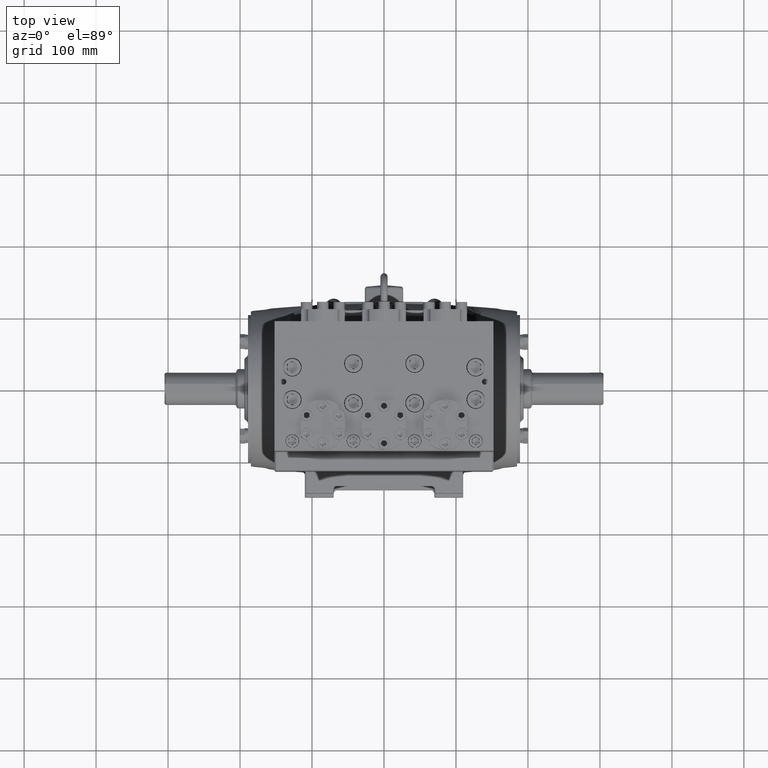
[diagram: clean part render]
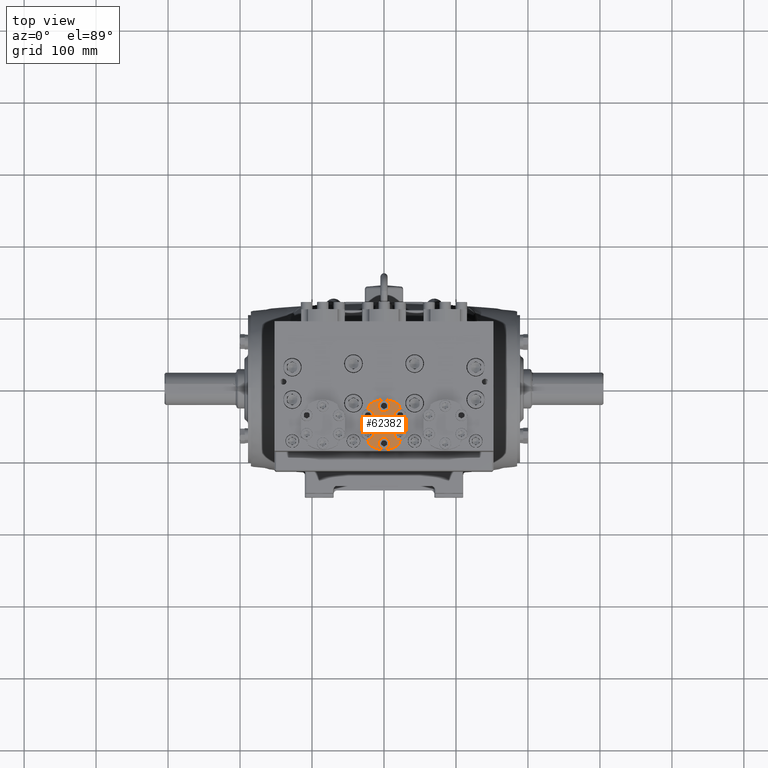
[diagram: same view with one face highlighted and labeled with its STEP entity id]
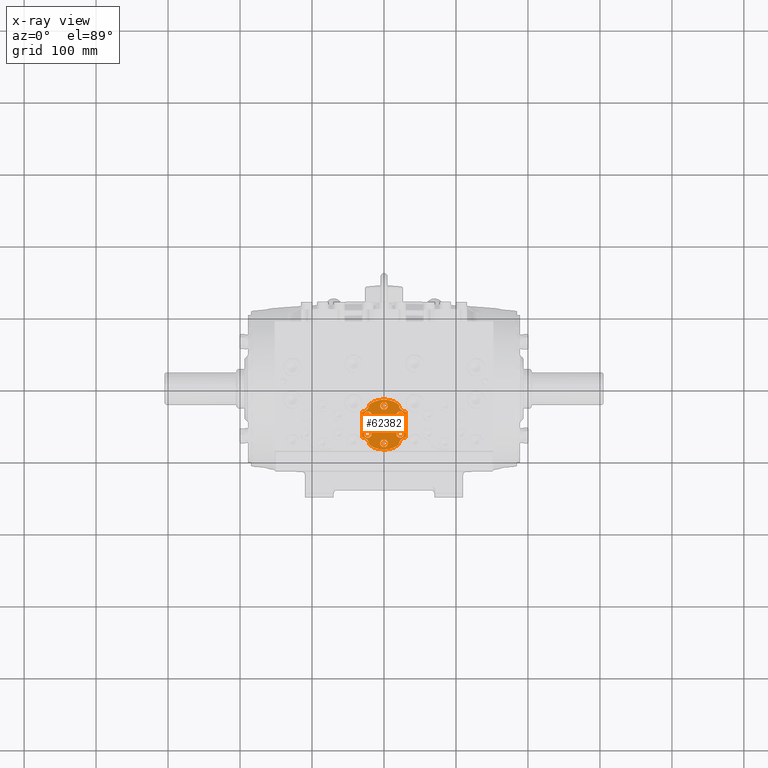
[diagram: x-ray of the same camera — body ghosted, the highlighted face saturated]
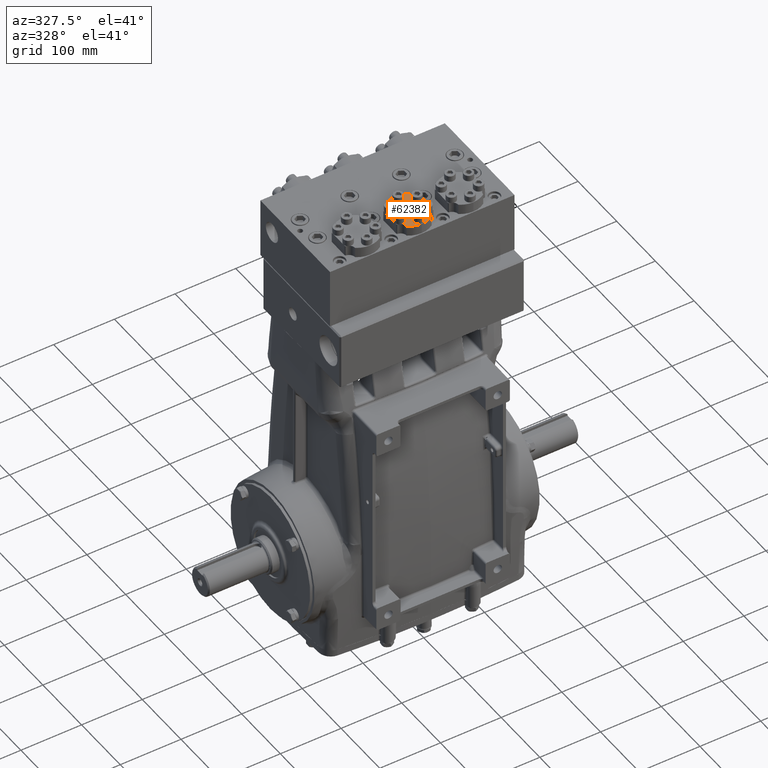
[diagram: same view with one face highlighted and labeled with its STEP entity id]
A machine part, top view. The second image highlights one B-rep face of the part: STEP entity #62382.
The next image is the same camera in x-ray: the body ghosted, the highlighted face saturated — about 0% of this face is hidden behind the body in this view.
A second angle (auxiliary view) of the same face is appended — the face is thin or edge-on in the first view.
In plain terms, the highlighted planar face has unit normal (-0, -0, -1).
Its self-contained STEP definition (entity closure, byte-faithful):
#871 = ORIENTED_EDGE ( 'NONE', *, *, #19215, .F. ) ;
#2094 = DIRECTION ( 'NONE',  ( -1.321694076934709021E-15, -1.000000000000000000, 0.000000000000000000 ) ) ;
#2127 = CARTESIAN_POINT ( 'NONE',  ( 1.200787401574801017, -3.017822932416573511, 23.11023622047244075 ) ) ;
#2505 = CARTESIAN_POINT ( 'NONE',  ( 0.8864826967872170282, -1.850393700787399398, 23.11023622047244075 ) ) ;
#2901 = CARTESIAN_POINT ( 'NONE',  ( -0.8864826967872231345, -1.850393700787405393, 23.11023622047244075 ) ) ;
#3711 = VERTEX_POINT ( 'NONE', #49008 ) ;
#4434 = VERTEX_POINT ( 'NONE', #61658 ) ;
#4940 = PLANE ( 'NONE',  #7246 ) ;
#5208 = CARTESIAN_POINT ( 'NONE',  ( 1.169512579524098594, -3.072110313052140107, 23.11023622047244075 ) ) ;
#5343 = DIRECTION ( 'NONE',  ( 9.960234374190967267E-16, 1.000000000000000000, -5.483502206371327654E-16 ) ) ;
#5747 = FACE_BOUND ( 'NONE', #59262, .T. ) ;
#6237 = ORIENTED_EDGE ( 'NONE', *, *, #61393, .F. ) ;
#6467 = CARTESIAN_POINT ( 'NONE',  ( 0.8070934578720179164, -1.257521163967174838, 23.11023622047244075 ) ) ;
#7201 = DIRECTION ( 'NONE',  ( -9.960234374190959378E-16, -1.000000000000000000, 0.000000000000000000 ) ) ;
#7246 = AXIS2_PLACEMENT_3D ( 'NONE', #23993, #29656, #5343 ) ;
#7509 = ORIENTED_EDGE ( 'NONE', *, *, #40975, .F. ) ;
#8096 = CARTESIAN_POINT ( 'NONE',  ( -7.417021470242838507E-16, -1.545275590551183020, 23.11023622047244075 ) ) ;
#8156 = VERTEX_POINT ( 'NONE', #63225 ) ;
#8890 = EDGE_CURVE ( 'NONE', #33259, #64832, #17787, .T. ) ;
#8916 = CIRCLE ( 'NONE', #30950, 1.368110236220472675 ) ;
#9375 = DIRECTION ( 'NONE',  ( 2.245699772446549611E-17, 5.483502206371328640E-16, 1.000000000000000000 ) ) ;
#9512 = ORIENTED_EDGE ( 'NONE', *, *, #69629, .F. ) ;
#10181 = CARTESIAN_POINT ( 'NONE',  ( -0.8864826967872229124, -1.643700787401578545, 23.11023622047244075 ) ) ;
#10457 = VECTOR ( 'NONE', #69738, 39.37007874015748143 ) ;
#10501 = ORIENTED_EDGE ( 'NONE', *, *, #69372, .F. ) ;
#10594 = EDGE_CURVE ( 'NONE', #61530, #48633, #56741, .T. ) ;
#10714 = DIRECTION ( 'NONE',  ( -1.321694076934709021E-15, -1.000000000000000000, 0.000000000000000000 ) ) ;
#11179 = ORIENTED_EDGE ( 'NONE', *, *, #71028, .F. ) ;
#12231 = CARTESIAN_POINT ( 'NONE',  ( 0.8864826967872170282, -1.850393700787399398, 23.11023622047244075 ) ) ;
#12756 = CIRCLE ( 'NONE', #48976, 0.3937007874015746034 ) ;
#12861 = EDGE_CURVE ( 'NONE', #68354, #31654, #8916, .T. ) ;
#13527 = AXIS2_PLACEMENT_3D ( 'NONE', #35276, #9375, #58804 ) ;
#13862 = CARTESIAN_POINT ( 'NONE',  ( -1.200787401574805457, -3.017822932416572179, 23.11023622047244075 ) ) ;
#14514 = VERTEX_POINT ( 'NONE', #5208 ) ;
#15436 = CARTESIAN_POINT ( 'NONE',  ( -1.555382711057601310E-15, -2.362204724409450840, 23.11023622047244075 ) ) ;
#15943 = EDGE_CURVE ( 'NONE', #19667, #18188, #48064, .T. ) ;
#16300 = EDGE_CURVE ( 'NONE', #22974, #38674, #70087, .T. ) ;
#16450 = VERTEX_POINT ( 'NONE', #31763 ) ;
#17255 = CIRCLE ( 'NONE', #21124, 0.2066929133858269596 ) ;
#17512 = CARTESIAN_POINT ( 'NONE',  ( -1.200787401574803903, -1.706586516402327947, 23.11023622047244075 ) ) ;
#17543 = DIRECTION ( 'NONE',  ( -2.245699772446549611E-17, -5.483502206371328640E-16, -1.000000000000000000 ) ) ;
#17787 = CIRCLE ( 'NONE', #44937, 0.2066929133858269596 ) ;
#17924 = DIRECTION ( 'NONE',  ( 2.245699772446549611E-17, 5.483502206371328640E-16, 1.000000000000000000 ) ) ;
#18188 = VERTEX_POINT ( 'NONE', #39114 ) ;
#18727 = AXIS2_PLACEMENT_3D ( 'NONE', #24363, #49083, #73770 ) ;
#19215 = EDGE_CURVE ( 'NONE', #42762, #27442, #46956, .T. ) ;
#19667 = VERTEX_POINT ( 'NONE', #72004 ) ;
#19994 = AXIS2_PLACEMENT_3D ( 'NONE', #65816, #53261, #28131 ) ;
#20025 = VERTEX_POINT ( 'NONE', #22513 ) ;
#21124 = AXIS2_PLACEMENT_3D ( 'NONE', #44817, #27385, #39125 ) ;
#21978 = DIRECTION ( 'NONE',  ( -1.626579328312230879E-16, -1.000000000000000000, 5.483502206371325682E-16 ) ) ;
#22052 = ORIENTED_EDGE ( 'NONE', *, *, #68607, .F. ) ;
#22513 = CARTESIAN_POINT ( 'NONE',  ( 1.200787401574801017, -3.017822932416573511, 23.11023622047244075 ) ) ;
#22581 = ORIENTED_EDGE ( 'NONE', *, *, #8890, .F. ) ;
#22974 = VERTEX_POINT ( 'NONE', #48495 ) ;
#23089 = EDGE_CURVE ( 'NONE', #20025, #14514, #33859, .T. ) ;
#23187 = FACE_BOUND ( 'NONE', #24132, .T. ) ;
#23460 = DIRECTION ( 'NONE',  ( 2.245699772446549611E-17, 5.483502206371328640E-16, 1.000000000000000000 ) ) ;
#23993 = CARTESIAN_POINT ( 'NONE',  ( -1.555382711057601310E-15, -2.362204724409450840, 23.11023622047244075 ) ) ;
#24132 = EDGE_LOOP ( 'NONE', ( #6237, #9512 ) ) ;
#24363 = CARTESIAN_POINT ( 'NONE',  ( -1.200787401574803681, -1.259842519685039353, 23.11023622047244075 ) ) ;
#24532 = DIRECTION ( 'NONE',  ( -1.321694076934709021E-15, -1.000000000000000000, 0.000000000000000000 ) ) ;
#25437 = CARTESIAN_POINT ( 'NONE',  ( -2.574934261171637748E-15, -3.385826771653545730, 23.11023622047244075 ) ) ;
#25695 = DIRECTION ( 'NONE',  ( -2.245699772446549611E-17, -5.483502206371328640E-16, -1.000000000000000000 ) ) ;
#26012 = DIRECTION ( 'NONE',  ( 2.245699772446549611E-17, 5.483502206371328640E-16, 1.000000000000000000 ) ) ;
#26055 = AXIS2_PLACEMENT_3D ( 'NONE', #30647, #67135, #72393 ) ;
#26441 = DIRECTION ( 'NONE',  ( -1.321694076934709021E-15, -1.000000000000000000, 0.000000000000000000 ) ) ;
#26696 = CARTESIAN_POINT ( 'NONE',  ( -1.169512579524102591, -3.072110313052138775, 23.11023622047244075 ) ) ;
#27251 = EDGE_LOOP ( 'NONE', ( #51218, #10501 ) ) ;
#27385 = DIRECTION ( 'NONE',  ( 2.245699772446549611E-17, 5.483502206371328640E-16, 1.000000000000000000 ) ) ;
#27442 = VERTEX_POINT ( 'NONE', #8096 ) ;
#27672 = DIRECTION ( 'NONE',  ( -9.960234374190965294E-16, -1.000000000000000000, 0.000000000000000000 ) ) ;
#27690 = EDGE_CURVE ( 'NONE', #31654, #19667, #44492, .T. ) ;
#27703 = AXIS2_PLACEMENT_3D ( 'NONE', #38511, #63653, #76978 ) ;
#28131 = DIRECTION ( 'NONE',  ( -9.960234374190959378E-16, -1.000000000000000000, 0.000000000000000000 ) ) ;
#28315 = CARTESIAN_POINT ( 'NONE',  ( -1.169512579524101481, -1.652299135766762017, 23.11023622047244075 ) ) ;
#29475 = CARTESIAN_POINT ( 'NONE',  ( -0.8864826967872234675, -2.057086614173232242, 23.11023622047244075 ) ) ;
#29656 = DIRECTION ( 'NONE',  ( -2.245699772446549611E-17, -5.483502206371327654E-16, -1.000000000000000000 ) ) ;
#29777 = DIRECTION ( 'NONE',  ( -2.245699772446549611E-17, -5.483502206371328640E-16, -1.000000000000000000 ) ) ;
#30329 = DIRECTION ( 'NONE',  ( 1.040834085586085637E-15, 1.000000000000000000, 0.000000000000000000 ) ) ;
#30392 = EDGE_CURVE ( 'NONE', #38674, #45259, #68032, .T. ) ;
#30435 = DIRECTION ( 'NONE',  ( 2.245699772446549611E-17, 5.483502206371328640E-16, 1.000000000000000000 ) ) ;
#30647 = CARTESIAN_POINT ( 'NONE',  ( -1.555382711057601310E-15, -2.362204724409450840, 23.11023622047244075 ) ) ;
#30950 = AXIS2_PLACEMENT_3D ( 'NONE', #56881, #25695, #50409 ) ;
#31263 = CARTESIAN_POINT ( 'NONE',  ( -1.555382711057601310E-15, -2.362204724409450840, 23.11023622047244075 ) ) ;
#31654 = VERTEX_POINT ( 'NONE', #6467 ) ;
#31763 = CARTESIAN_POINT ( 'NONE',  ( 0.8864826967872204699, -2.667322834645669438, 23.11023622047244075 ) ) ;
#33259 = VERTEX_POINT ( 'NONE', #65033 ) ;
#33423 = EDGE_CURVE ( 'NONE', #8156, #4434, #51305, .T. ) ;
#33501 = ORIENTED_EDGE ( 'NONE', *, *, #50639, .F. ) ;
#33573 = EDGE_LOOP ( 'NONE', ( #59476, #52513 ) ) ;
#33859 = CIRCLE ( 'NONE', #26055, 1.368110236220472675 ) ;
#33982 = CARTESIAN_POINT ( 'NONE',  ( -0.8070934578720195818, -1.257521163967173727, 23.11023622047244075 ) ) ;
#34078 = DIRECTION ( 'NONE',  ( 2.245699772446549611E-17, 5.483502206371328640E-16, 1.000000000000000000 ) ) ;
#34138 = CARTESIAN_POINT ( 'NONE',  ( -1.555382711057601310E-15, -2.362204724409450840, 23.11023622047244075 ) ) ;
#34428 = AXIS2_PLACEMENT_3D ( 'NONE', #31263, #17543, #49911 ) ;
#34944 = CARTESIAN_POINT ( 'NONE',  ( -2.925567708339946696E-15, -3.730314960629923515, 23.11023622047244075 ) ) ;
#34961 = DIRECTION ( 'NONE',  ( -2.245699772446549611E-17, -5.483502206371328640E-16, -1.000000000000000000 ) ) ;
#35276 = CARTESIAN_POINT ( 'NONE',  ( -2.574934261171637748E-15, -3.385826771653545730, 23.11023622047244075 ) ) ;
#36105 = CARTESIAN_POINT ( 'NONE',  ( -1.200787401574805902, -3.464566929133860995, 23.11023622047244075 ) ) ;
#36125 = FACE_BOUND ( 'NONE', #38366, .T. ) ;
#36293 = CARTESIAN_POINT ( 'NONE',  ( 0.8864826967872168062, -2.057086614173226469, 23.11023622047244075 ) ) ;
#36390 = CARTESIAN_POINT ( 'NONE',  ( -2.343750693612479402E-15, -3.179133858267718882, 23.11023622047244075 ) ) ;
#37688 = AXIS2_PLACEMENT_3D ( 'NONE', #15436, #78875, #41628 ) ;
#37827 = DIRECTION ( 'NONE',  ( -1.321694076934709021E-15, -1.000000000000000000, 0.000000000000000000 ) ) ;
#38366 = EDGE_LOOP ( 'NONE', ( #75113, #871 ) ) ;
#38511 = CARTESIAN_POINT ( 'NONE',  ( 1.200787401574800795, -3.464566929133862327, 23.11023622047244075 ) ) ;
#38674 = VERTEX_POINT ( 'NONE', #34944 ) ;
#39114 = CARTESIAN_POINT ( 'NONE',  ( 1.200787401574801461, -1.706586516402329945, 23.11023622047244075 ) ) ;
#39125 = DIRECTION ( 'NONE',  ( -1.321694076934709021E-15, -1.000000000000000000, 0.000000000000000000 ) ) ;
#39414 = CIRCLE ( 'NONE', #57574, 0.2066929133858269596 ) ;
#39754 = CARTESIAN_POINT ( 'NONE',  ( -1.200787401574805457, -3.017822932416572179, 23.11023622047244075 ) ) ;
#40808 = AXIS2_PLACEMENT_3D ( 'NONE', #57225, #56054, #26441 ) ;
#40975 = EDGE_CURVE ( 'NONE', #18188, #20025, #63719, .T. ) ;
#41628 = DIRECTION ( 'NONE',  ( 9.960234374190967267E-16, 1.000000000000000000, 0.000000000000000000 ) ) ;
#41900 = AXIS2_PLACEMENT_3D ( 'NONE', #72882, #23460, #30329 ) ;
#42173 = ORIENTED_EDGE ( 'NONE', *, *, #12861, .F. ) ;
#42762 = VERTEX_POINT ( 'NONE', #52946 ) ;
#43554 = AXIS2_PLACEMENT_3D ( 'NONE', #59745, #54472, #10714 ) ;
#43675 = DIRECTION ( 'NONE',  ( 2.245699772446549611E-17, 5.483502206371328640E-16, 1.000000000000000000 ) ) ;
#44492 = CIRCLE ( 'NONE', #41900, 0.3937007874015743258 ) ;
#44817 = CARTESIAN_POINT ( 'NONE',  ( -0.8864826967872231345, -1.850393700787405393, 23.11023622047244075 ) ) ;
#44937 = AXIS2_PLACEMENT_3D ( 'NONE', #12231, #17924, #67336 ) ;
#45259 = VERTEX_POINT ( 'NONE', #55816 ) ;
#45960 = VERTEX_POINT ( 'NONE', #26696 ) ;
#46956 = CIRCLE ( 'NONE', #57290, 0.2066929133858269596 ) ;
#47146 = DIRECTION ( 'NONE',  ( 9.960234374190967267E-16, 1.000000000000000000, 0.000000000000000000 ) ) ;
#47942 = ORIENTED_EDGE ( 'NONE', *, *, #60659, .F. ) ;
#48064 = CIRCLE ( 'NONE', #37688, 1.368110236220471787 ) ;
#48421 = CIRCLE ( 'NONE', #27703, 0.3937007874015746034 ) ;
#48495 = CARTESIAN_POINT ( 'NONE',  ( 0.8070934578720168062, -3.466888284851728397, 23.11023622047244075 ) ) ;
#48633 = VERTEX_POINT ( 'NONE', #28315 ) ;
#48976 = AXIS2_PLACEMENT_3D ( 'NONE', #36105, #30435, #79830 ) ;
#49008 = CARTESIAN_POINT ( 'NONE',  ( -2.780805247252356432E-15, -3.592519685039373023, 23.11023622047244075 ) ) ;
#49083 = DIRECTION ( 'NONE',  ( 2.245699772446549611E-17, 5.483502206371328640E-16, 1.000000000000000000 ) ) ;
#49232 = AXIS2_PLACEMENT_3D ( 'NONE', #56492, #50415, #24532 ) ;
#49429 = VERTEX_POINT ( 'NONE', #10181 ) ;
#49440 = CARTESIAN_POINT ( 'NONE',  ( 0.8864826967872199148, -3.080708661417323579, 23.11023622047244075 ) ) ;
#49911 = DIRECTION ( 'NONE',  ( 9.960234374190967267E-16, 1.000000000000000000, 0.000000000000000000 ) ) ;
#50024 = ORIENTED_EDGE ( 'NONE', *, *, #15943, .F. ) ;
#50331 = ORIENTED_EDGE ( 'NONE', *, *, #30392, .F. ) ;
#50409 = DIRECTION ( 'NONE',  ( -9.960234374190965294E-16, -1.000000000000000000, 0.000000000000000000 ) ) ;
#50415 = DIRECTION ( 'NONE',  ( 2.245699772446549611E-17, 5.483502206371328640E-16, 1.000000000000000000 ) ) ;
#50535 = EDGE_CURVE ( 'NONE', #27442, #42762, #54938, .T. ) ;
#50639 = EDGE_CURVE ( 'NONE', #48633, #68354, #55000, .T. ) ;
#51126 = LINE ( 'NONE', #39754, #10457 ) ;
#51218 = ORIENTED_EDGE ( 'NONE', *, *, #68065, .F. ) ;
#51305 = CIRCLE ( 'NONE', #43554, 0.2066929133858269596 ) ;
#51611 = DIRECTION ( 'NONE',  ( 2.245699772446549611E-17, 5.483502206371328640E-16, 1.000000000000000000 ) ) ;
#51758 = EDGE_LOOP ( 'NONE', ( #68396, #22052, #53775, #7509, #50024, #51864, #42173, #33501, #53541, #78519, #57375, #72465, #50331 ) ) ;
#51864 = ORIENTED_EDGE ( 'NONE', *, *, #27690, .F. ) ;
#52513 = ORIENTED_EDGE ( 'NONE', *, *, #53397, .F. ) ;
#52822 = CARTESIAN_POINT ( 'NONE',  ( -1.555382711057601310E-15, -2.362204724409450840, 23.11023622047244075 ) ) ;
#52946 = CARTESIAN_POINT ( 'NONE',  ( -3.046475933844067222E-16, -1.131889763779529323, 23.11023622047244075 ) ) ;
#53163 = AXIS2_PLACEMENT_3D ( 'NONE', #2505, #26012, #75805 ) ;
#53261 = DIRECTION ( 'NONE',  ( 2.245699772446549611E-17, 5.483502206371328640E-16, 1.000000000000000000 ) ) ;
#53397 = EDGE_CURVE ( 'NONE', #4434, #8156, #77633, .T. ) ;
#53541 = ORIENTED_EDGE ( 'NONE', *, *, #10594, .F. ) ;
#53775 = ORIENTED_EDGE ( 'NONE', *, *, #23089, .F. ) ;
#53999 = EDGE_CURVE ( 'NONE', #64832, #33259, #67440, .T. ) ;
#54258 = EDGE_CURVE ( 'NONE', #72282, #61530, #51126, .T. ) ;
#54472 = DIRECTION ( 'NONE',  ( 2.245699772446549611E-17, 5.483502206371328640E-16, 1.000000000000000000 ) ) ;
#54790 = FACE_OUTER_BOUND ( 'NONE', #51758, .T. ) ;
#54938 = CIRCLE ( 'NONE', #19994, 0.2066929133858269596 ) ;
#55000 = CIRCLE ( 'NONE', #18727, 0.3937007874015743258 ) ;
#55062 = CIRCLE ( 'NONE', #40808, 0.2066929133858269596 ) ;
#55712 = DIRECTION ( 'NONE',  ( 9.960234374190967267E-16, 1.000000000000000000, 0.000000000000000000 ) ) ;
#55816 = CARTESIAN_POINT ( 'NONE',  ( -0.8070934578720220243, -3.466888284851727065, 23.11023622047244075 ) ) ;
#56054 = DIRECTION ( 'NONE',  ( 2.245699772446549611E-17, 5.483502206371328640E-16, 1.000000000000000000 ) ) ;
#56171 = CIRCLE ( 'NONE', #72935, 0.2066929133858269596 ) ;
#56492 = CARTESIAN_POINT ( 'NONE',  ( -0.8864826967872200258, -2.874015748031502504, 23.11023622047244075 ) ) ;
#56741 = CIRCLE ( 'NONE', #73576, 1.368110236220472675 ) ;
#56881 = CARTESIAN_POINT ( 'NONE',  ( -1.555382711057601310E-15, -2.362204724409450840, 23.11023622047244075 ) ) ;
#57225 = CARTESIAN_POINT ( 'NONE',  ( 0.8864826967872201369, -2.874015748031496731, 23.11023622047244075 ) ) ;
#57290 = AXIS2_PLACEMENT_3D ( 'NONE', #79845, #73793, #61644 ) ;
#57307 = EDGE_CURVE ( 'NONE', #45960, #72282, #61303, .T. ) ;
#57375 = ORIENTED_EDGE ( 'NONE', *, *, #57307, .F. ) ;
#57574 = AXIS2_PLACEMENT_3D ( 'NONE', #25437, #43675, #7201 ) ;
#57654 = DIRECTION ( 'NONE',  ( -2.245699772446549611E-17, -5.483502206371328640E-16, -1.000000000000000000 ) ) ;
#58645 = CIRCLE ( 'NONE', #75433, 0.2066929133858269596 ) ;
#58804 = DIRECTION ( 'NONE',  ( -9.960234374190959378E-16, -1.000000000000000000, 0.000000000000000000 ) ) ;
#59262 = EDGE_LOOP ( 'NONE', ( #47942, #11179 ) ) ;
#59476 = ORIENTED_EDGE ( 'NONE', *, *, #33423, .F. ) ;
#59512 = VECTOR ( 'NONE', #21978, 39.37007874015748143 ) ;
#59745 = CARTESIAN_POINT ( 'NONE',  ( -0.8864826967872200258, -2.874015748031502504, 23.11023622047244075 ) ) ;
#60659 = EDGE_CURVE ( 'NONE', #3711, #64512, #39414, .T. ) ;
#61260 = FACE_BOUND ( 'NONE', #33573, .T. ) ;
#61303 = CIRCLE ( 'NONE', #65179, 1.368110236220472897 ) ;
#61393 = EDGE_CURVE ( 'NONE', #63192, #16450, #55062, .T. ) ;
#61530 = VERTEX_POINT ( 'NONE', #17512 ) ;
#61644 = DIRECTION ( 'NONE',  ( -9.960234374190959378E-16, -1.000000000000000000, 0.000000000000000000 ) ) ;
#61658 = CARTESIAN_POINT ( 'NONE',  ( -0.8864826967872198038, -2.667322834645675655, 23.11023622047244075 ) ) ;
#62382 = ADVANCED_FACE ( 'NONE', ( #61260, #78656, #36125, #66937, #23187, #5747, #54790 ), #4940, .F. ) ;
#63192 = VERTEX_POINT ( 'NONE', #49440 ) ;
#63225 = CARTESIAN_POINT ( 'NONE',  ( -0.8864826967872203589, -3.080708661417329353, 23.11023622047244075 ) ) ;
#63653 = DIRECTION ( 'NONE',  ( 2.245699772446549611E-17, 5.483502206371328640E-16, 1.000000000000000000 ) ) ;
#63719 = LINE ( 'NONE', #2127, #59512 ) ;
#64512 = VERTEX_POINT ( 'NONE', #36390 ) ;
#64832 = VERTEX_POINT ( 'NONE', #36293 ) ;
#65033 = CARTESIAN_POINT ( 'NONE',  ( 0.8864826967872172503, -1.643700787401572549, 23.11023622047244075 ) ) ;
#65179 = AXIS2_PLACEMENT_3D ( 'NONE', #52822, #34961, #47146 ) ;
#65542 = EDGE_CURVE ( 'NONE', #45259, #45960, #12756, .T. ) ;
#65816 = CARTESIAN_POINT ( 'NONE',  ( -5.358311609435649696E-16, -1.338582677165356172, 23.11023622047244075 ) ) ;
#66937 = FACE_BOUND ( 'NONE', #77359, .T. ) ;
#67135 = DIRECTION ( 'NONE',  ( -2.245699772446549611E-17, -5.483502206371328640E-16, -1.000000000000000000 ) ) ;
#67336 = DIRECTION ( 'NONE',  ( -1.321694076934709021E-15, -1.000000000000000000, 0.000000000000000000 ) ) ;
#67440 = CIRCLE ( 'NONE', #53163, 0.2066929133858269596 ) ;
#68032 = CIRCLE ( 'NONE', #34428, 1.368110236220473119 ) ;
#68065 = EDGE_CURVE ( 'NONE', #69162, #49429, #56171, .T. ) ;
#68354 = VERTEX_POINT ( 'NONE', #33982 ) ;
#68396 = ORIENTED_EDGE ( 'NONE', *, *, #16300, .F. ) ;
#68607 = EDGE_CURVE ( 'NONE', #14514, #22974, #48421, .T. ) ;
#69162 = VERTEX_POINT ( 'NONE', #29475 ) ;
#69372 = EDGE_CURVE ( 'NONE', #49429, #69162, #17255, .T. ) ;
#69629 = EDGE_CURVE ( 'NONE', #16450, #63192, #58645, .T. ) ;
#69738 = DIRECTION ( 'NONE',  ( 9.960234374190967267E-16, 1.000000000000000000, -5.483502206371327654E-16 ) ) ;
#70087 = CIRCLE ( 'NONE', #75262, 1.368110236220473119 ) ;
#71028 = EDGE_CURVE ( 'NONE', #64512, #3711, #73052, .T. ) ;
#71062 = ORIENTED_EDGE ( 'NONE', *, *, #53999, .F. ) ;
#72004 = CARTESIAN_POINT ( 'NONE',  ( 1.169512579524098816, -1.652299135766764016, 23.11023622047244075 ) ) ;
#72282 = VERTEX_POINT ( 'NONE', #13862 ) ;
#72393 = DIRECTION ( 'NONE',  ( -9.960234374190965294E-16, -1.000000000000000000, 0.000000000000000000 ) ) ;
#72465 = ORIENTED_EDGE ( 'NONE', *, *, #65542, .F. ) ;
#72882 = CARTESIAN_POINT ( 'NONE',  ( 1.200787401574801683, -1.259842519685041129, 23.11023622047244075 ) ) ;
#72935 = AXIS2_PLACEMENT_3D ( 'NONE', #2901, #34078, #2094 ) ;
#73052 = CIRCLE ( 'NONE', #13527, 0.2066929133858269596 ) ;
#73576 = AXIS2_PLACEMENT_3D ( 'NONE', #34138, #57654, #27672 ) ;
#73770 = DIRECTION ( 'NONE',  ( -1.040834085586085637E-15, -1.000000000000000000, 0.000000000000000000 ) ) ;
#73793 = DIRECTION ( 'NONE',  ( 2.245699772446549611E-17, 5.483502206371328640E-16, 1.000000000000000000 ) ) ;
#73926 = CARTESIAN_POINT ( 'NONE',  ( -1.555382711057601310E-15, -2.362204724409450840, 23.11023622047244075 ) ) ;
#75113 = ORIENTED_EDGE ( 'NONE', *, *, #50535, .F. ) ;
#75262 = AXIS2_PLACEMENT_3D ( 'NONE', #73926, #29777, #55712 ) ;
#75433 = AXIS2_PLACEMENT_3D ( 'NONE', #76285, #51611, #37827 ) ;
#75805 = DIRECTION ( 'NONE',  ( -1.321694076934709021E-15, -1.000000000000000000, 0.000000000000000000 ) ) ;
#76285 = CARTESIAN_POINT ( 'NONE',  ( 0.8864826967872201369, -2.874015748031496731, 23.11023622047244075 ) ) ;
#76978 = DIRECTION ( 'NONE',  ( -1.040834085586084848E-15, -1.000000000000000000, 0.000000000000000000 ) ) ;
#77359 = EDGE_LOOP ( 'NONE', ( #71062, #22581 ) ) ;
#77633 = CIRCLE ( 'NONE', #49232, 0.2066929133858269596 ) ;
#78519 = ORIENTED_EDGE ( 'NONE', *, *, #54258, .F. ) ;
#78656 = FACE_BOUND ( 'NONE', #27251, .T. ) ;
#78875 = DIRECTION ( 'NONE',  ( -2.245699772446549611E-17, -5.483502206371328640E-16, -1.000000000000000000 ) ) ;
#79830 = DIRECTION ( 'NONE',  ( 1.040834085586084848E-15, 1.000000000000000000, 0.000000000000000000 ) ) ;
#79845 = CARTESIAN_POINT ( 'NONE',  ( -5.358311609435649696E-16, -1.338582677165356172, 23.11023622047244075 ) ) ;